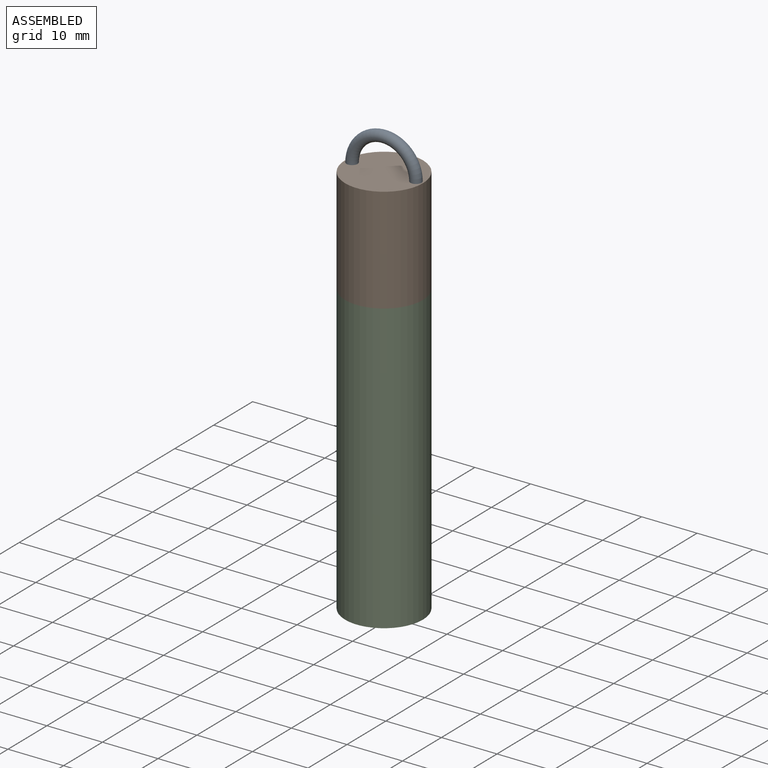
[diagram: assembled view]
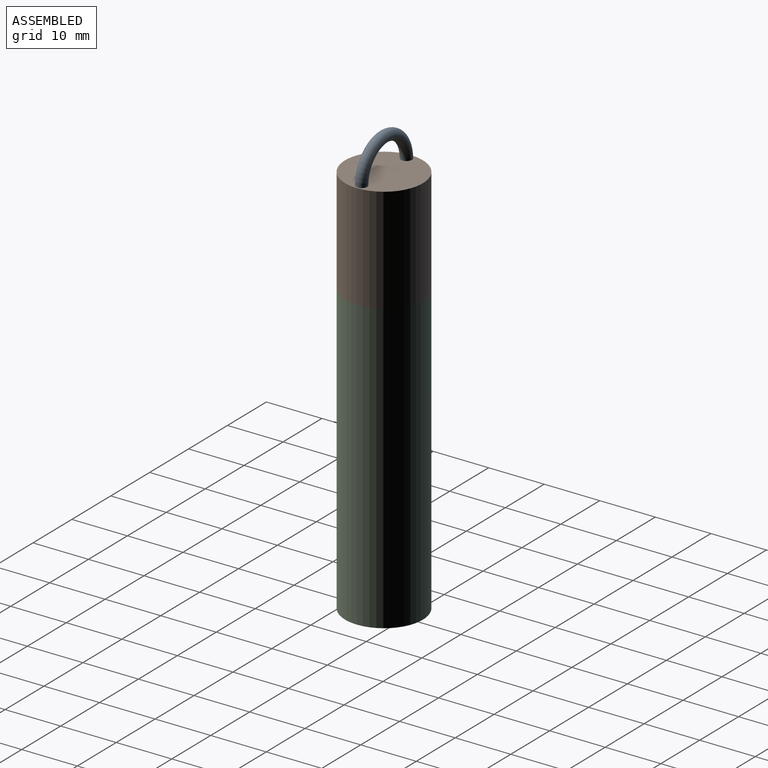
[diagram: assembled view, second angle]
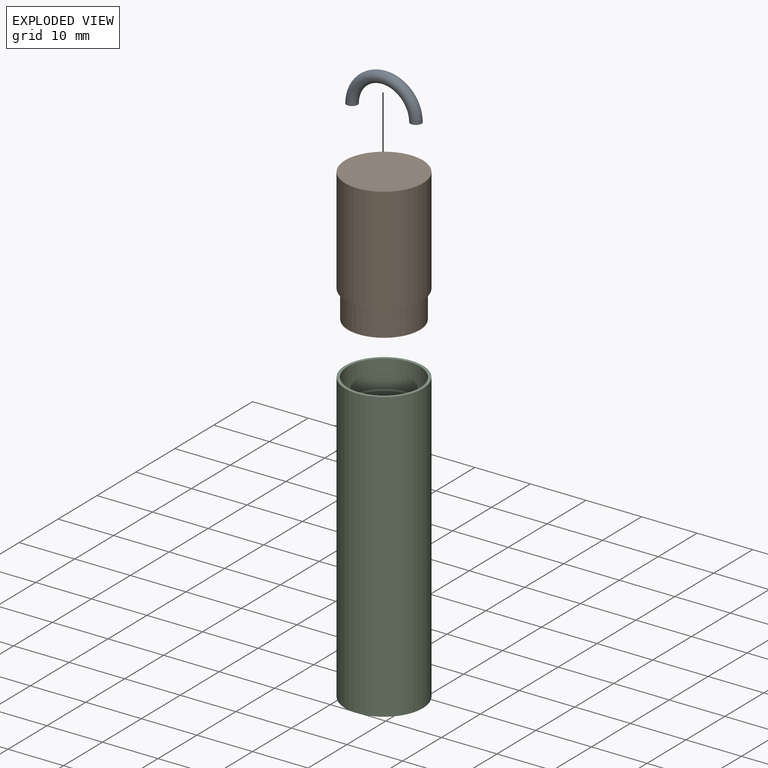
[diagram: exploded view]
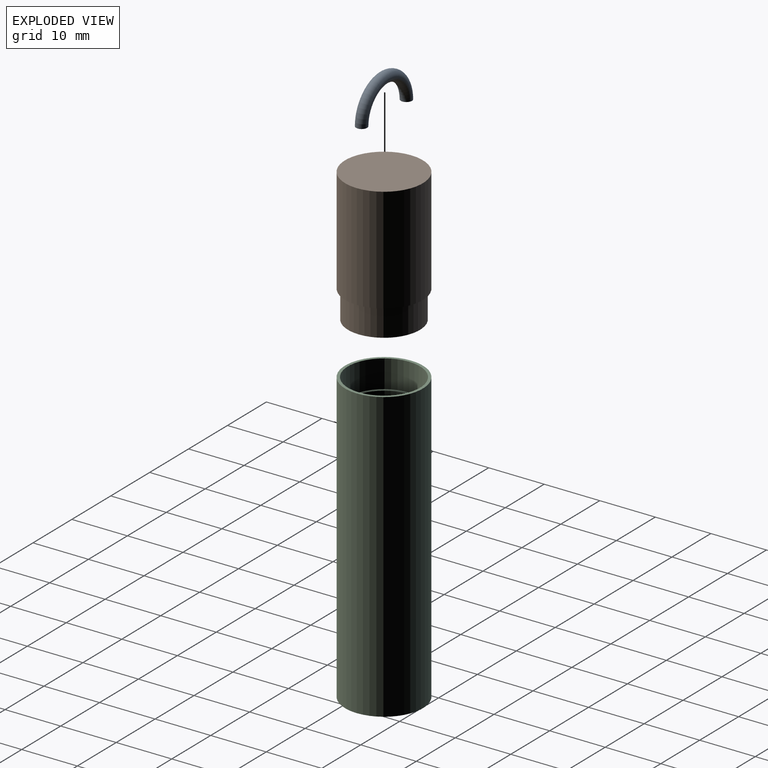
[diagram: exploded view, second angle]
ASSEMBLY  parts=3 mates=2
PART A: 3 faces, bbox 14.6x2x7.3 mm
  f0: plane 2x2mm, normal (0,0,-1), area 3.1mm2, adj f2
  f1: plane 2x2mm, normal (0,0,-1), area 3.1mm2, adj f2
  f2: torus R=5.75mm, axis (0,-1,0), area 113.5mm2, adj f0,f1
PART B: 7 faces, bbox 14x14x24 mm
  f0: plane 12.94x12.94mm, normal (0,0,-1), area 18.5mm2, adj f2,f3
  f1: plane 12x12mm, normal (0,0,-1), area 113.1mm2, adj f2
  f2: cylinder r=6mm len=23mm, axis (0,0,-1), area 867.1mm2, adj f0,f1
  f3: cylinder r=6.47mm len=12.94mm, axis (0,0,-1), area 203.3mm2, adj f0,f4
  f4: plane 14x14mm, normal (0,0,-1), area 22.4mm2, adj f3,f6
  f5: plane 14x14mm, normal (0,0,1), area 153.9mm2, adj f6
  f6: cylinder r=7mm len=19mm, axis (0,0,-1), area 835.7mm2, adj f4,f5
PART C: 7 faces, bbox 14x14x52 mm
  f0: plane 14x14mm, normal (0,0,-1), area 153.9mm2, adj f1
  f1: cylinder r=7mm len=52mm, axis (0,0,-1), area 2287.1mm2, adj f0,f2
  f2: plane 14x14mm, normal (0,0,1), area 21.2mm2, adj f1,f3
  f3: cylinder r=6.5mm len=13mm, axis (0,0,1), area 204.2mm2, adj f2,f4
  f4: plane 13x13mm, normal (0,0,1), area 19.6mm2, adj f3,f6
  f5: plane 12x12mm, normal (0,0,1), area 113.1mm2, adj f6
  f6: cylinder r=6mm len=46mm, axis (0,0,-1), area 1734.2mm2, adj f4,f5
PLACE A t=(-49.35,-25.33,40.77)mm
PLACE B t=(-43.6,-25.33,40.77)mm
PLACE C t=(-43.6,-25.33,-5.47)mm
MATE fastened B.f3 <-> C.f3  axis (0,0,-1) through (-43.6,-25.33,19.27)mm
MATE fastened A.f1 <-> B.f5  axis (0,0,-1) through (-49.35,-25.33,40.77)mm
